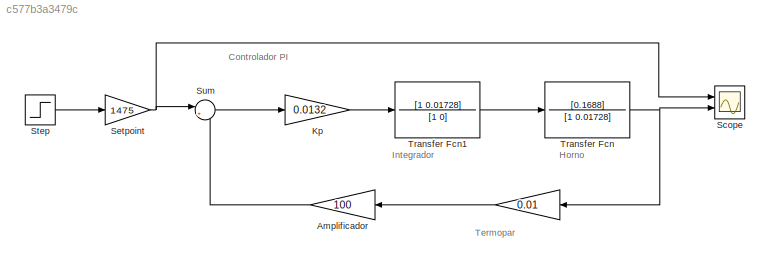
MODEL slx_c577b3a3479c
KIND model
CONFIG AbsTol = auto
CONFIG EnableMultiTasking = off
CONFIG FixedStep = auto
CONFIG MaxStep = auto
CONFIG MinStep = auto
CONFIG RelTol = 1e-3
CONFIG SampleTimeConstraint = Unconstrained
CONFIG SolverName = VariableStepAuto
CONFIG StartTime = 0.0
CONFIG StopTime = 10.0
BLOCK [Gain]  
  Gain = 0.01
BLOCK [Gain] Amplificador
  Gain = 100
BLOCK [Gain] Kp
  Gain = 0.0132
BLOCK [Scope] Scope
  Floating = off
  NumInputPorts = 2
  Ports = [2]
  ScopeSpecificationString = Simulink.scopes.TimeScopeBlockCfg('CurrentConfiguration', extmgr.ConfigurationSet(extmgr.Configuration('Core','General UI',true,'FigureColor',[1 1 1]),extmgr.Configuration('Core','Source UI',true),extmgr.Configuration('Sources','WiredSimulink',true),extmgr.Configuration('Visuals','Time Domain',true,'SerializedDisplays',{struct('MinYLimReal','-184.58005','MaxYLimReal','1661.22042','YLabelReal','','...<+1670ch>
BLOCK [Gain] Setpoint
  Gain = 1475
BLOCK [Step] Step
  SampleTime = 0
BLOCK [Sum] Sum
  Inputs = |+-
  Ports = [2, 1]
BLOCK [TransferFcn] Transfer Fcn
  Denominator = [1 0.01728]
  Numerator = [0.1688]
BLOCK [TransferFcn] Transfer Fcn1
  Denominator = [1 0]
  Numerator = [1 0.01728]
ANNOTATION (root): Controlador PI
ANNOTATION (root): Horno
ANNOTATION (root): Integrador
ANNOTATION (root): Termopar
LINE  :1 -> Amplificador:1
LINE Amplificador:1 -> Sum:2
LINE Kp:1 -> Transfer Fcn1:1
NET Setpoint:1 -> Scope:1, Sum:1
LINE Step:1 -> Setpoint:1
LINE Sum:1 -> Kp:1
LINE Transfer Fcn1:1 -> Transfer Fcn:1
NET Transfer Fcn:1 ->  :1, Scope:2
note: NET lines group one-source signal fan-out (src -> all destinations, sorted); 1:1 wires keep LINE
